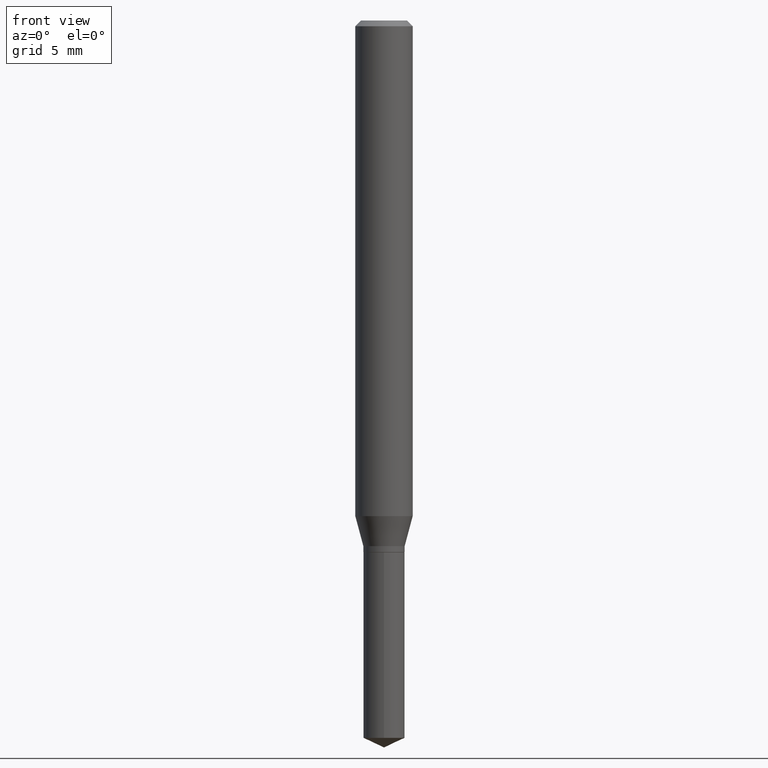
[diagram: clean part render]
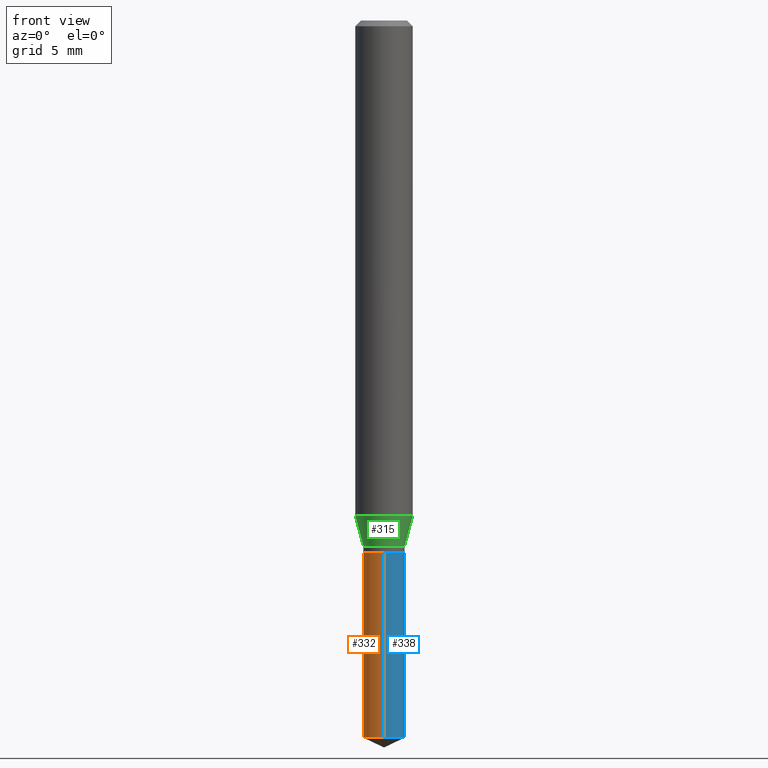
[diagram: same view with three faces highlighted in distinct colors, each labeled with its STEP entity id]
A machine part, front view with three faces highlighted in distinct colors.
Their STEP definitions:

[orange] entity #332 — the highlighted cylindrical surface (edge-blend (fillet) strip) has radius 1.0795 mm, axis along (-0, 0, 1).
#1 = DIRECTION ( 'NONE',  ( -2.445458899330790108E-29, 3.491495526022433205E-15, 1.000000000000000000 ) ) ;
#7 = EDGE_CURVE ( 'NONE', #72, #115, #229, .T. ) ;
#19 = VERTEX_POINT ( 'NONE', #445 ) ;
#46 = CARTESIAN_POINT ( 'NONE',  ( 3.019806626980692740E-16, 0.04249999999999617278, -1.094500000000000028 ) ) ;
#68 = DIRECTION ( 'NONE',  ( -2.445458899330790108E-29, 3.491495526022433205E-15, 1.000000000000000000 ) ) ;
#72 = VERTEX_POINT ( 'NONE', #382 ) ;
#73 = CYLINDRICAL_SURFACE ( 'NONE', #280, 0.04249999999999999611 ) ;
#87 = CARTESIAN_POINT ( 'NONE',  ( -2.967759138016302152E-16, -0.04250000000000515865, -1.476281924528412448 ) ) ;
#104 = CARTESIAN_POINT ( 'NONE',  ( 3.610197613311274720E-29, -5.154416206771010619E-15, -1.476281924528412670 ) ) ;
#105 = DIRECTION ( 'NONE',  ( -2.445458899330790108E-29, 3.491495526022433205E-15, 1.000000000000000000 ) ) ;
#115 = VERTEX_POINT ( 'NONE', #87 ) ;
#124 = DIRECTION ( 'NONE',  ( -2.445458899330790108E-29, 3.491495526022433599E-15, 1.000000000000000000 ) ) ;
#142 = DIRECTION ( 'NONE',  ( -6.982962677686266711E-15, -1.000000000000000000, 3.213938816075604088E-15 ) ) ;
#154 = VERTEX_POINT ( 'NONE', #437 ) ;
#167 = LINE ( 'NONE', #287, #305 ) ;
#192 = ORIENTED_EDGE ( 'NONE', *, *, #7, .T. ) ;
#211 = EDGE_CURVE ( 'NONE', #154, #19, #342, .T. ) ;
#213 = AXIS2_PLACEMENT_3D ( 'NONE', #456, #105, #419 ) ;
#224 = EDGE_CURVE ( 'NONE', #72, #154, #396, .T. ) ;
#229 = CIRCLE ( 'NONE', #383, 0.04249999999999999611 ) ;
#269 = CARTESIAN_POINT ( 'NONE',  ( 2.676565608369631794E-29, -3.821426325363822773E-15, -1.094499999999999806 ) ) ;
#276 = ORIENTED_EDGE ( 'NONE', *, *, #301, .T. ) ;
#280 = AXIS2_PLACEMENT_3D ( 'NONE', #269, #1, #142 ) ;
#287 = CARTESIAN_POINT ( 'NONE',  ( -2.967759138016395336E-16, -0.04250000000000382638, -1.094499999999999806 ) ) ;
#298 = ORIENTED_EDGE ( 'NONE', *, *, #224, .F. ) ;
#301 = EDGE_CURVE ( 'NONE', #115, #19, #167, .T. ) ;
#305 = VECTOR ( 'NONE', #322, 39.37007874015748143 ) ;
#322 = DIRECTION ( 'NONE',  ( -2.445458899330790108E-29, 3.491495526022433599E-15, 1.000000000000000000 ) ) ;
#332 = ADVANCED_FACE ( 'NONE', ( #462 ), #73, .T. ) ;
#337 = DIRECTION ( 'NONE',  ( -6.982962677686266711E-15, -1.000000000000000000, 6.427877632151208176E-15 ) ) ;
#342 = CIRCLE ( 'NONE', #213, 0.04249999999999999611 ) ;
#366 = ORIENTED_EDGE ( 'NONE', *, *, #211, .F. ) ;
#382 = CARTESIAN_POINT ( 'NONE',  ( 3.019806626980785925E-16, 0.04249999999999484052, -1.476281924528413114 ) ) ;
#383 = AXIS2_PLACEMENT_3D ( 'NONE', #104, #68, #337 ) ;
#396 = LINE ( 'NONE', #46, #431 ) ;
#419 = DIRECTION ( 'NONE',  ( -6.982962677686266711E-15, -1.000000000000000000, 3.213938816075604088E-15 ) ) ;
#431 = VECTOR ( 'NONE', #124, 39.37007874015748143 ) ;
#437 = CARTESIAN_POINT ( 'NONE',  ( 3.019806626980786418E-16, 0.04249999999999617278, -1.094500000000000028 ) ) ;
#445 = CARTESIAN_POINT ( 'NONE',  ( -2.967759138016395336E-16, -0.04250000000000382638, -1.094499999999999806 ) ) ;
#447 = EDGE_LOOP ( 'NONE', ( #298, #192, #276, #366 ) ) ;
#456 = CARTESIAN_POINT ( 'NONE',  ( 2.676565608369631794E-29, -3.821426325363822773E-15, -1.094499999999999806 ) ) ;
#462 = FACE_OUTER_BOUND ( 'NONE', #447, .T. ) ;

[blue] entity #338 — the highlighted cylindrical surface (edge-blend (fillet) strip) has radius 1.0795 mm, axis along (-0, 0, 1).
#19 = VERTEX_POINT ( 'NONE', #445 ) ;
#29 = EDGE_CURVE ( 'NONE', #115, #72, #42, .T. ) ;
#32 = DIRECTION ( 'NONE',  ( -6.982962677686266711E-15, -1.000000000000000000, 3.213938816075604088E-15 ) ) ;
#42 = CIRCLE ( 'NONE', #475, 0.04249999999999999611 ) ;
#46 = CARTESIAN_POINT ( 'NONE',  ( 3.019806626980692740E-16, 0.04249999999999617278, -1.094500000000000028 ) ) ;
#56 = DIRECTION ( 'NONE',  ( -6.982962677686266711E-15, -1.000000000000000000, 6.427877632151208176E-15 ) ) ;
#72 = VERTEX_POINT ( 'NONE', #382 ) ;
#76 = CYLINDRICAL_SURFACE ( 'NONE', #101, 0.04249999999999999611 ) ;
#87 = CARTESIAN_POINT ( 'NONE',  ( -2.967759138016302152E-16, -0.04250000000000515865, -1.476281924528412448 ) ) ;
#96 = ORIENTED_EDGE ( 'NONE', *, *, #29, .T. ) ;
#98 = ORIENTED_EDGE ( 'NONE', *, *, #463, .F. ) ;
#101 = AXIS2_PLACEMENT_3D ( 'NONE', #381, #347, #32 ) ;
#108 = FACE_OUTER_BOUND ( 'NONE', #218, .T. ) ;
#115 = VERTEX_POINT ( 'NONE', #87 ) ;
#124 = DIRECTION ( 'NONE',  ( -2.445458899330790108E-29, 3.491495526022433599E-15, 1.000000000000000000 ) ) ;
#154 = VERTEX_POINT ( 'NONE', #437 ) ;
#166 = CARTESIAN_POINT ( 'NONE',  ( 3.610197613311274720E-29, -5.154416206771010619E-15, -1.476281924528412670 ) ) ;
#167 = LINE ( 'NONE', #287, #305 ) ;
#212 = DIRECTION ( 'NONE',  ( -6.982962677686266711E-15, -1.000000000000000000, 3.213938816075604088E-15 ) ) ;
#218 = EDGE_LOOP ( 'NONE', ( #96, #325, #98, #333 ) ) ;
#224 = EDGE_CURVE ( 'NONE', #72, #154, #396, .T. ) ;
#237 = CIRCLE ( 'NONE', #384, 0.04249999999999999611 ) ;
#257 = DIRECTION ( 'NONE',  ( -2.445458899330790108E-29, 3.491495526022433205E-15, 1.000000000000000000 ) ) ;
#287 = CARTESIAN_POINT ( 'NONE',  ( -2.967759138016395336E-16, -0.04250000000000382638, -1.094499999999999806 ) ) ;
#301 = EDGE_CURVE ( 'NONE', #115, #19, #167, .T. ) ;
#305 = VECTOR ( 'NONE', #322, 39.37007874015748143 ) ;
#322 = DIRECTION ( 'NONE',  ( -2.445458899330790108E-29, 3.491495526022433599E-15, 1.000000000000000000 ) ) ;
#325 = ORIENTED_EDGE ( 'NONE', *, *, #224, .T. ) ;
#333 = ORIENTED_EDGE ( 'NONE', *, *, #301, .F. ) ;
#338 = ADVANCED_FACE ( 'NONE', ( #108 ), #76, .T. ) ;
#347 = DIRECTION ( 'NONE',  ( -2.445458899330790108E-29, 3.491495526022433205E-15, 1.000000000000000000 ) ) ;
#381 = CARTESIAN_POINT ( 'NONE',  ( 2.676565608369631794E-29, -3.821426325363822773E-15, -1.094499999999999806 ) ) ;
#382 = CARTESIAN_POINT ( 'NONE',  ( 3.019806626980785925E-16, 0.04249999999999484052, -1.476281924528413114 ) ) ;
#384 = AXIS2_PLACEMENT_3D ( 'NONE', #453, #257, #212 ) ;
#396 = LINE ( 'NONE', #46, #431 ) ;
#431 = VECTOR ( 'NONE', #124, 39.37007874015748143 ) ;
#437 = CARTESIAN_POINT ( 'NONE',  ( 3.019806626980786418E-16, 0.04249999999999617278, -1.094500000000000028 ) ) ;
#445 = CARTESIAN_POINT ( 'NONE',  ( -2.967759138016395336E-16, -0.04250000000000382638, -1.094499999999999806 ) ) ;
#453 = CARTESIAN_POINT ( 'NONE',  ( 2.676565608369631794E-29, -3.821426325363822773E-15, -1.094499999999999806 ) ) ;
#463 = EDGE_CURVE ( 'NONE', #19, #154, #237, .T. ) ;
#474 = DIRECTION ( 'NONE',  ( -2.445458899330790108E-29, 3.491495526022433205E-15, 1.000000000000000000 ) ) ;
#475 = AXIS2_PLACEMENT_3D ( 'NONE', #166, #474, #56 ) ;

[green] entity #315 — the highlighted conical surface has half-angle 15 deg.
#8 = DIRECTION ( 'NONE',  ( -2.445468806185136597E-29, 3.491481338843145583E-15, 1.000000000000000000 ) ) ;
#9 = ORIENTED_EDGE ( 'NONE', *, *, #102, .T. ) ;
#28 = FACE_OUTER_BOUND ( 'NONE', #138, .T. ) ;
#35 = DIRECTION ( 'NONE',  ( 1.000000000000000000, -6.982962677686269077E-15, 0.000000000000000000 ) ) ;
#48 = CIRCLE ( 'NONE', #268, 0.04249999999999997530 ) ;
#52 = DIRECTION ( 'NONE',  ( -2.445468806185136597E-29, 3.491481338843145583E-15, 1.000000000000000000 ) ) ;
#57 = EDGE_CURVE ( 'NONE', #313, #329, #48, .T. ) ;
#60 = LINE ( 'NONE', #375, #403 ) ;
#62 = DIRECTION ( 'NONE',  ( 1.000000000000000000, -6.982962677686269077E-15, 0.000000000000000000 ) ) ;
#66 = DIRECTION ( 'NONE',  ( -0.2588190451025214611, 5.211531920934551042E-15, 0.9659258262890682012 ) ) ;
#100 = VECTOR ( 'NONE', #66, 39.37007874015747433 ) ;
#102 = EDGE_CURVE ( 'NONE', #329, #129, #60, .T. ) ;
#129 = VERTEX_POINT ( 'NONE', #170 ) ;
#138 = EDGE_LOOP ( 'NONE', ( #344, #397, #9, #426 ) ) ;
#140 = DIRECTION ( 'NONE',  ( 0.2588190451025214611, 1.565188264969621573E-15, 0.9659258262890682012 ) ) ;
#150 = CARTESIAN_POINT ( 'NONE',  ( 0.04249999999999997530, -4.073511278028295777E-15, -1.081699999999999884 ) ) ;
#170 = CARTESIAN_POINT ( 'NONE',  ( 0.05905000000000013016, -3.973426426177510794E-15, -1.019934559134734409 ) ) ;
#201 = AXIS2_PLACEMENT_3D ( 'NONE', #401, #52, #206 ) ;
#206 = DIRECTION ( 'NONE',  ( 1.000000000000000000, -6.982962677686265133E-15, 0.000000000000000000 ) ) ;
#217 = CARTESIAN_POINT ( 'NONE',  ( -0.05905000000000013016, -3.141506994593796381E-15, -1.019934559134734409 ) ) ;
#219 = CARTESIAN_POINT ( 'NONE',  ( -0.04249999999999997530, -3.496227311762473140E-15, -1.081699999999999884 ) ) ;
#249 = DIRECTION ( 'NONE',  ( -2.445468806185136597E-29, 3.491481338843145583E-15, 1.000000000000000000 ) ) ;
#260 = CARTESIAN_POINT ( 'NONE',  ( 2.645263607650461570E-29, -3.776735364226629915E-15, -1.081699999999999884 ) ) ;
#263 = AXIS2_PLACEMENT_3D ( 'NONE', #260, #8, #35 ) ;
#268 = AXIS2_PLACEMENT_3D ( 'NONE', #413, #249, #62 ) ;
#297 = CIRCLE ( 'NONE', #201, 0.05905000000000013016 ) ;
#302 = EDGE_CURVE ( 'NONE', #313, #409, #450, .T. ) ;
#313 = VERTEX_POINT ( 'NONE', #219 ) ;
#315 = ADVANCED_FACE ( 'NONE', ( #28 ), #476, .T. ) ;
#329 = VERTEX_POINT ( 'NONE', #150 ) ;
#344 = ORIENTED_EDGE ( 'NONE', *, *, #302, .F. ) ;
#375 = CARTESIAN_POINT ( 'NONE',  ( 0.04249999999999997530, -4.073511278028295777E-15, -1.081699999999999884 ) ) ;
#378 = EDGE_CURVE ( 'NONE', #409, #129, #297, .T. ) ;
#397 = ORIENTED_EDGE ( 'NONE', *, *, #57, .T. ) ;
#401 = CARTESIAN_POINT ( 'NONE',  ( 2.494218148714182999E-29, -3.561082480060135874E-15, -1.019934559134734409 ) ) ;
#403 = VECTOR ( 'NONE', #140, 39.37007874015747433 ) ;
#409 = VERTEX_POINT ( 'NONE', #217 ) ;
#413 = CARTESIAN_POINT ( 'NONE',  ( 2.645263607650461570E-29, -3.776735364226629915E-15, -1.081699999999999884 ) ) ;
#426 = ORIENTED_EDGE ( 'NONE', *, *, #378, .F. ) ;
#450 = LINE ( 'NONE', #478, #100 ) ;
#476 = CONICAL_SURFACE ( 'NONE', #263, 0.04249999999999997530, 0.2617993877991501295 ) ;
#478 = CARTESIAN_POINT ( 'NONE',  ( -0.04249999999999997530, -3.474754701528587463E-15, -1.081699999999999884 ) ) ;